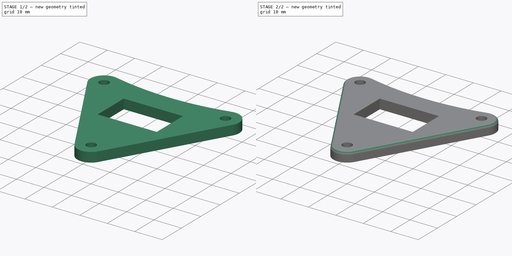
[diagram: build sequence overview — one tinted view per stage of 2, left to right]
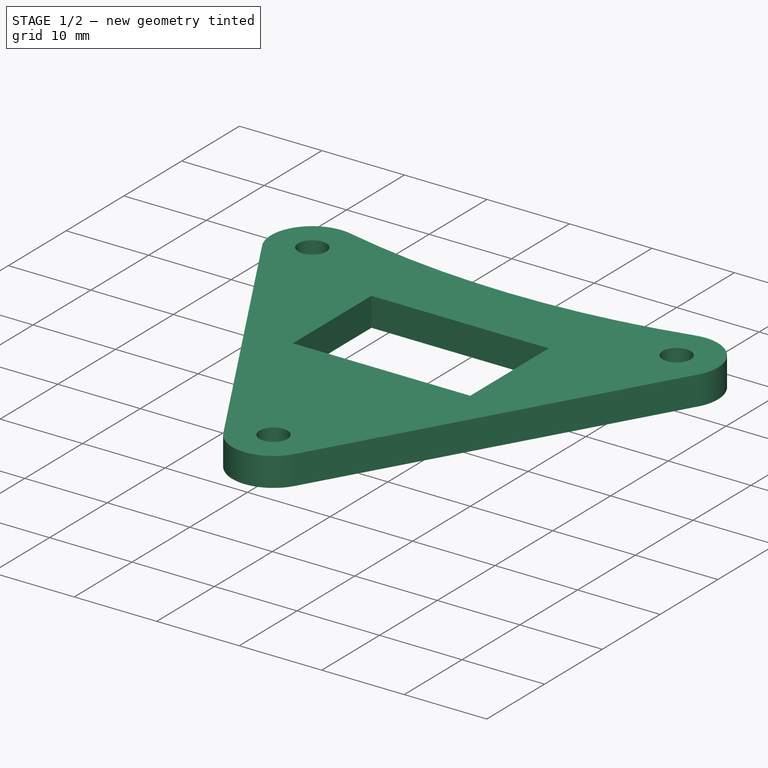
[diagram: stage 1 of 2 — iso view after this stage's code; geometry added in this stage tinted green]
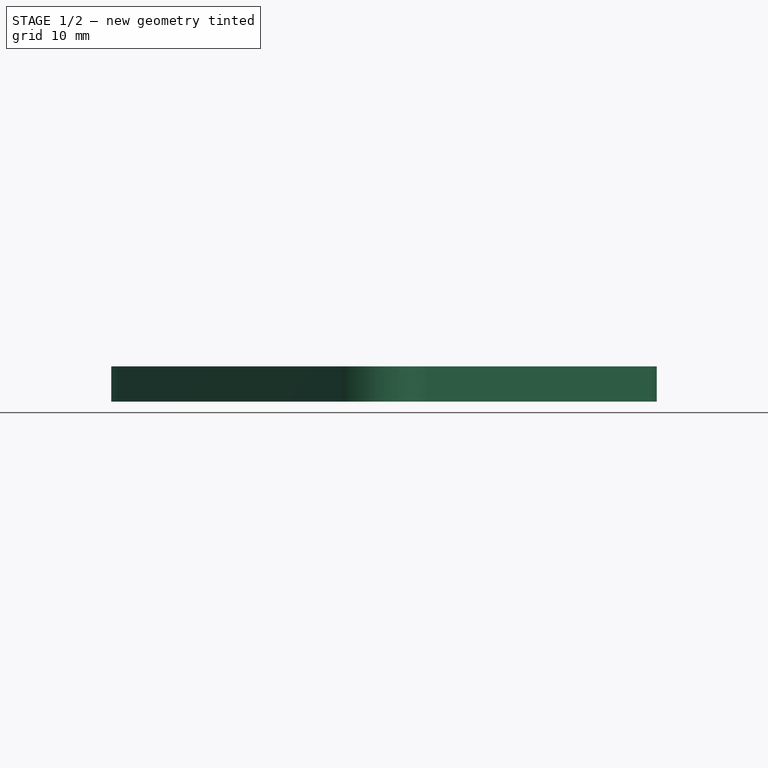
[diagram: stage 1 of 2 — front view after this stage's code; geometry added in this stage tinted green]
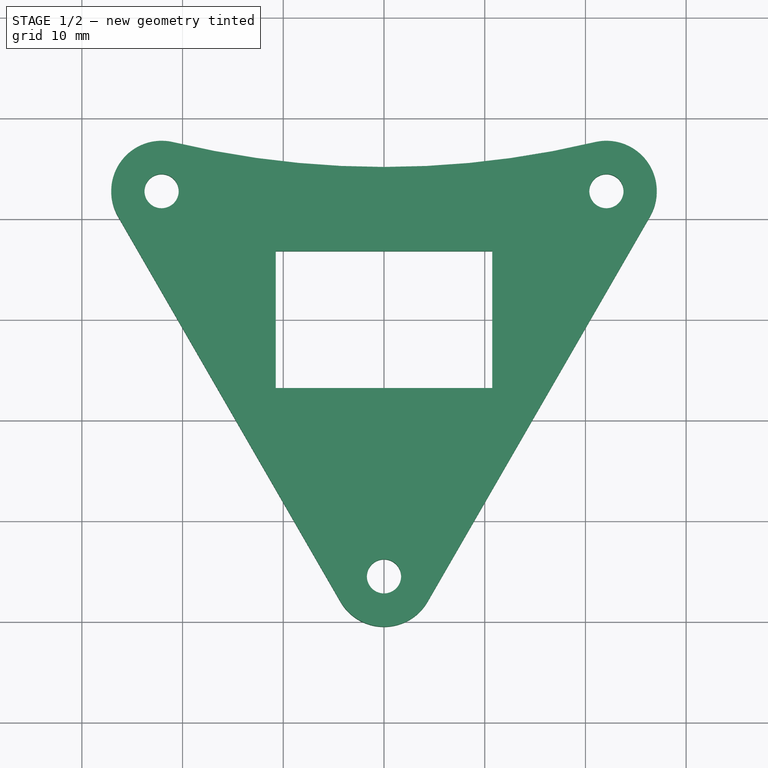
[diagram: stage 1 of 2 — top view after this stage's code; geometry added in this stage tinted green]
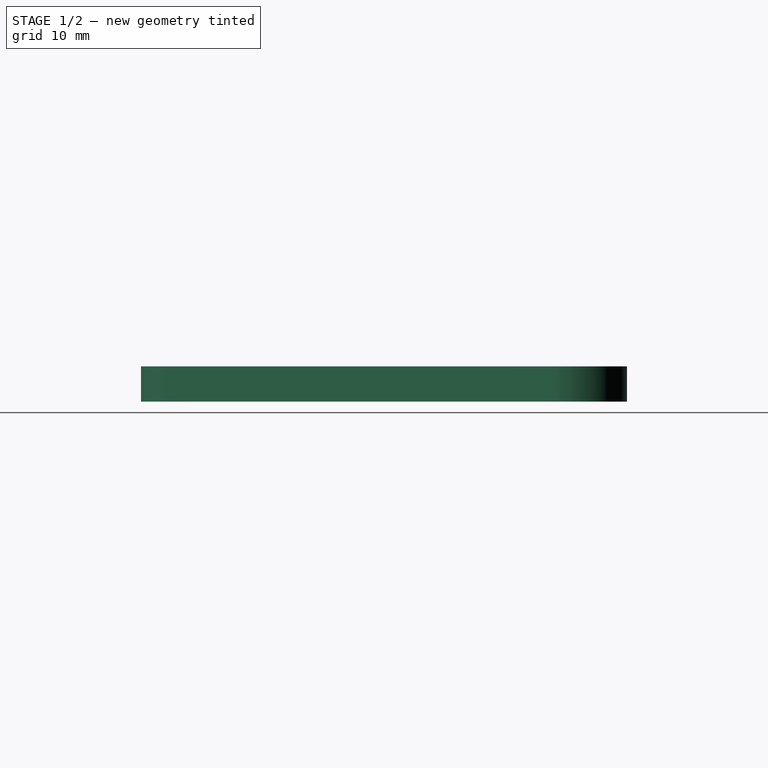
[diagram: stage 1 of 2 — right view after this stage's code; geometry added in this stage tinted green]
FCSTD DOCUMENT  (FreeCAD 0.18R4 (GitTag))
Label: _Y_Tensioner_Counter plate
License: CreativeCommons Attribution-ShareAlike
LicenseURL: http://creativecommons.org/licenses/by-sa/4.0/
objects: Sketcher::SketchObject×1, PartDesign::Pad×1, PartDesign::Fillet×1, PartDesign::Body×1
note: 5 computed .brp shape members not serialized (recipe doc carries the construction recipe); baked Part::Feature solids carry a one-line shape summary decoded from their .brp

FEATURE [Sketcher::SketchObject] Sketch
  MapMode = 5
  Support = -> [XY_Plane]
  sketch-geometry (18):
    g0: Circle [constr] CenterX=0 CenterY=0 CenterZ=0 NormalX=0 NormalY=0 NormalZ=1 AngleXU=0 Radius=25.5
    g1: LineSegment [constr] StartX=0 StartY=0 StartZ=0 EndX=-22.0836 EndY=12.75 EndZ=0
    g2: LineSegment [constr] StartX=0 StartY=0 StartZ=0 EndX=22.0836 EndY=12.75 EndZ=0
    g3: LineSegment [constr] StartX=0 StartY=0 StartZ=0 EndX=0 EndY=-25.5 EndZ=0
    g4: Circle CenterX=-22.0836 CenterY=12.75 CenterZ=0 NormalX=0 NormalY=0 NormalZ=1 AngleXU=0 Radius=1.7
    g5: Circle CenterX=22.0836 CenterY=12.75 CenterZ=0 NormalX=0 NormalY=0 NormalZ=1 AngleXU=0 Radius=1.7
    g6: Circle CenterX=0 CenterY=-25.5 CenterZ=0 NormalX=0 NormalY=0 NormalZ=1 AngleXU=0 Radius=1.7
    g7: LineSegment StartX=-10.75 StartY=6.8 StartZ=0 EndX=10.75 EndY=6.8 EndZ=0
    g8: LineSegment StartX=10.75 StartY=6.8 StartZ=0 EndX=10.75 EndY=-6.8 EndZ=0
    g9: LineSegment StartX=10.75 StartY=-6.8 StartZ=0 EndX=-10.75 EndY=-6.8 EndZ=0
    g10: LineSegment StartX=-10.75 StartY=-6.8 StartZ=0 EndX=-10.75 EndY=6.8 EndZ=0
    g11: ArcOfCircle CenterX=-22.0836 CenterY=12.75 CenterZ=0 NormalX=0 NormalY=0 NormalZ=1 AngleXU=0 Radius=5 StartAngle=1.33619 EndAngle=3.66519
    g12: ArcOfCircle CenterX=0 CenterY=-25.5 CenterZ=0 NormalX=0 NormalY=0 NormalZ=1 AngleXU=0 Radius=5 StartAngle=3.66519 EndAngle=5.75959
    g13: ArcOfCircle CenterX=22.0836 CenterY=12.75 CenterZ=0 NormalX=0 NormalY=0 NormalZ=1 AngleXU=0 Radius=5 StartAngle=5.75959 EndAngle=8.08859
    g14: ArcOfCircle CenterX=-8.6e-15 CenterY=105.148 CenterZ=0 NormalX=0 NormalY=0 NormalZ=1 AngleXU=0 Radius=90 StartAngle=4.47778 EndAngle=4.94699
    g15: LineSegment [constr] StartX=-22.0836 StartY=12.75 StartZ=0 EndX=-22.0836 EndY=17.75 EndZ=0
    g16: LineSegment StartX=-26.4138 StartY=10.25 StartZ=0 EndX=-4.33013 EndY=-28 EndZ=0
    g17: LineSegment StartX=4.33013 StartY=-28 StartZ=0 EndX=26.4138 EndY=10.25 EndZ=0
  constraints (47):
    c: Coincident(g0,g-1)
    c: Radius(g0) = 25.5
    c: Coincident(g1,g-1)
    c: PointOnObject(g1,g0)
    c: Coincident(g2,g-1)
    c: PointOnObject(g2,g0)
    c: Coincident(g3,g-1)
    c: PointOnObject(g3,g0)
    c: Vertical(g3)
    c: Angle(g3,g2) = 2.0944
    c: Angle(g1,g3) = 2.0944
    c: Coincident(g4,g1)
    c: Coincident(g5,g2)
    c: Coincident(g6,g3)
    c: Radius(g6) = 1.7
    c: Equal(g6,g5)
    c: Equal(g6,g4)
    c: Coincident(g7,g8)
    c: Coincident(g8,g9)
    c: Coincident(g9,g10)
    c: Coincident(g10,g7)
    c: Horizontal(g7)
    c: Vertical(g8)
    c: DistanceX(g7,g7) = 21.5
    c: DistanceY(g8,g8) = 13.6
    c: Symmetric(g7,g9,g-1)
    c: Symmetric(g9,g8,g-2)
    c: Coincident(g11,g1)
    c: Coincident(g12,g3)
    c: Coincident(g13,g2)
    c: Equal(g13,g11)
    c: Equal(g13,g12)
    c: Tangent(g14,g11) = 1.5708
    c: Tangent(g14,g13) = 1.5708
    c: Coincident(g15,g1)
    c: PointOnObject(g15,g11)
    c: Vertical(g15)
    c: Radius(g11) = 5
    c: Radius(g14) = 90
    c: Coincident(g16,g11)
    c: Coincident(g16,g12)
    c: Coincident(g17,g12)
    c: Coincident(g17,g13)
    c: Tangent(g11,g16)
    c: Tangent(g16,g12)
    c: Tangent(g12,g17)
    c: Tangent(g13,g17)
FEATURE [PartDesign::Pad] Pad
  Length = 3.5
  Length2 = 100
  Profile = -> Sketch
  Refine = true
  Type = 0
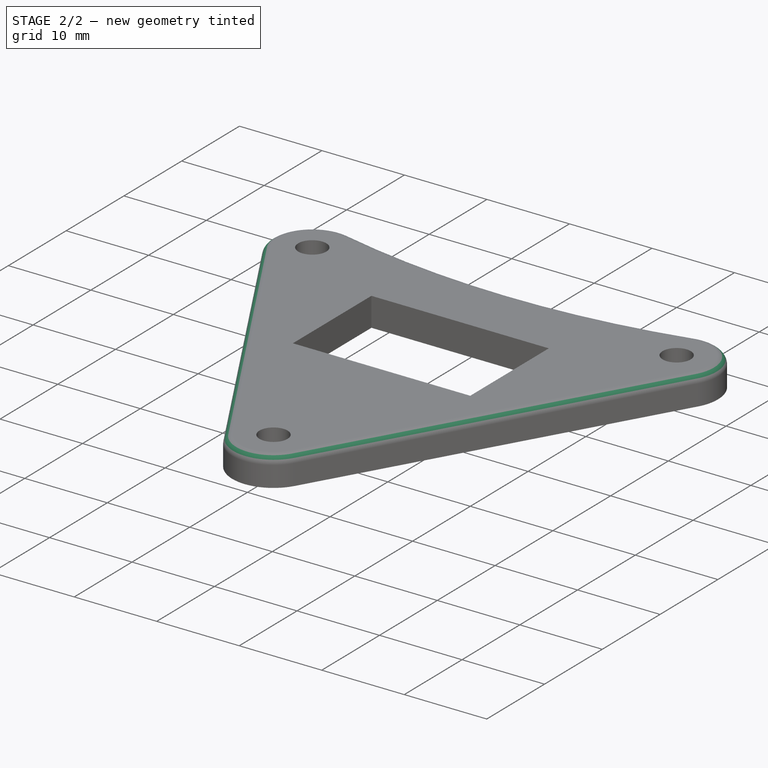
[diagram: stage 2 of 2 — iso view after this stage's code; geometry added in this stage tinted green]
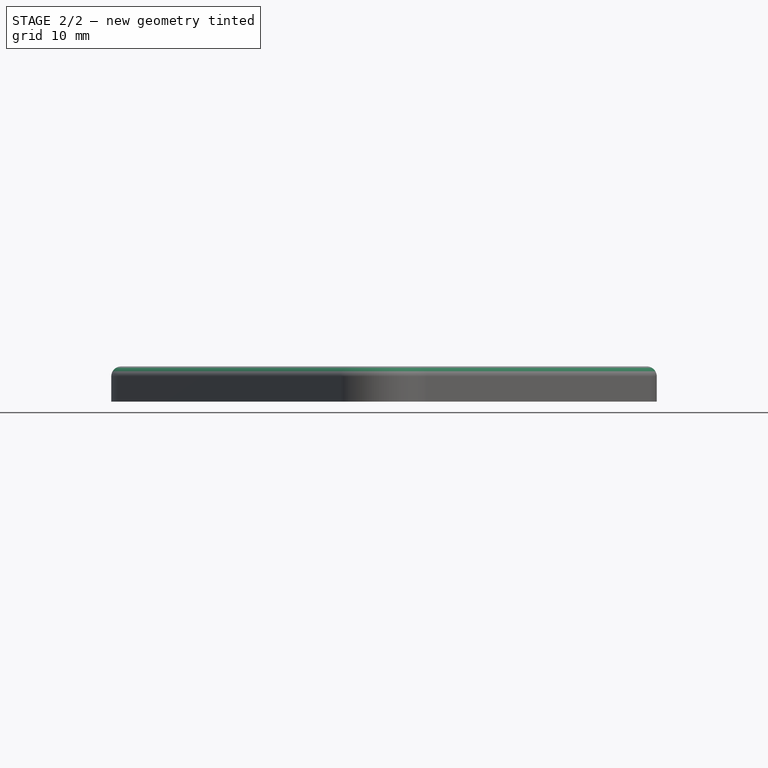
[diagram: stage 2 of 2 — front view after this stage's code; geometry added in this stage tinted green]
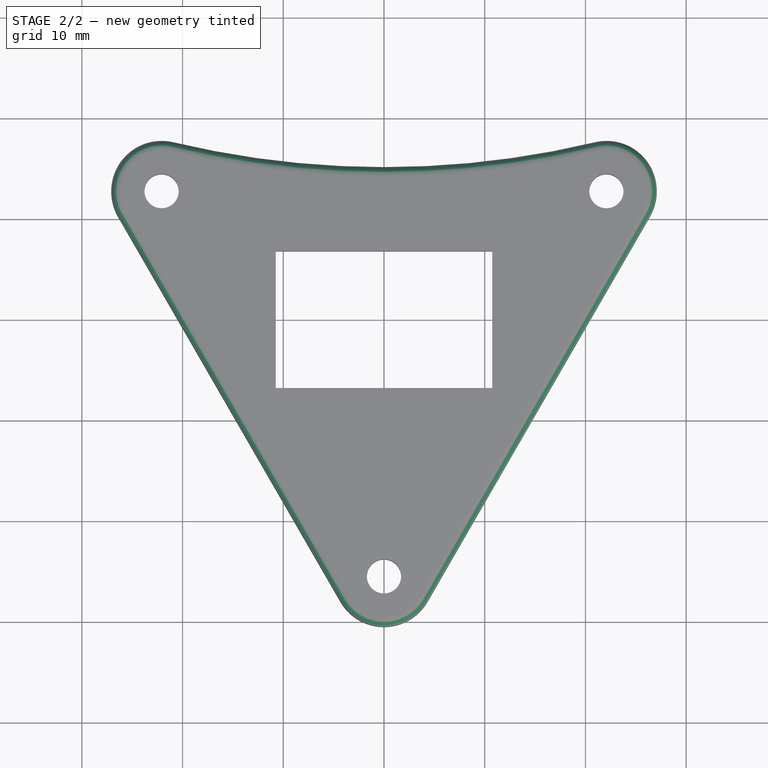
[diagram: stage 2 of 2 — top view after this stage's code; geometry added in this stage tinted green]
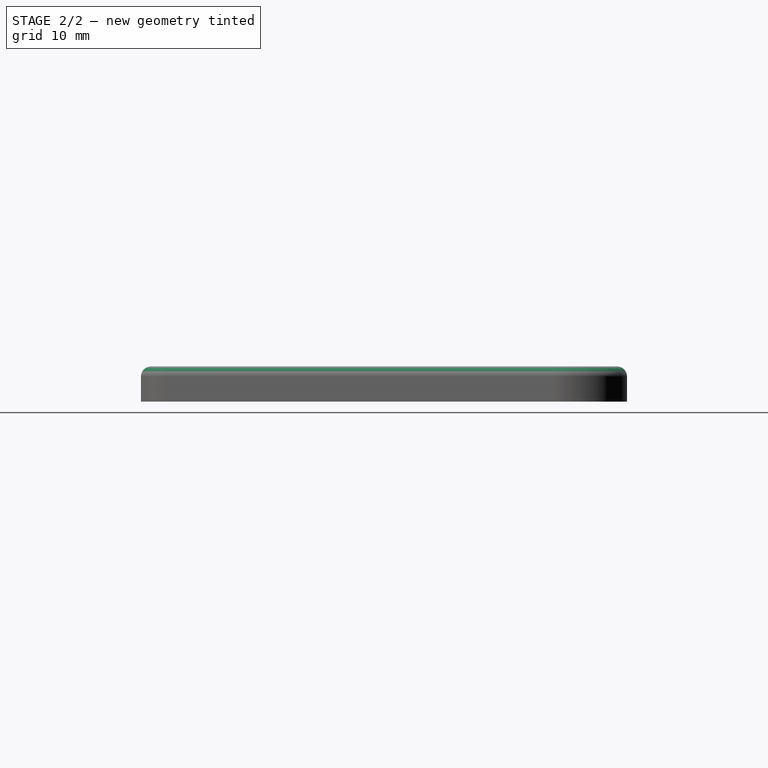
[diagram: stage 2 of 2 — right view after this stage's code; geometry added in this stage tinted green]
FEATURE [PartDesign::Fillet] Fillet
  Base = -> Pad [Edge7,Edge4,Edge18,Edge16,Edge13,Edge10]
  BaseFeature = -> Pad
  Radius = 1
FEATURE [PartDesign::Body] Body  label="counterplate"
  Group = -> [Sketch,Pad,Fillet]
  Origin = -> Origin
  Tip = -> Fillet
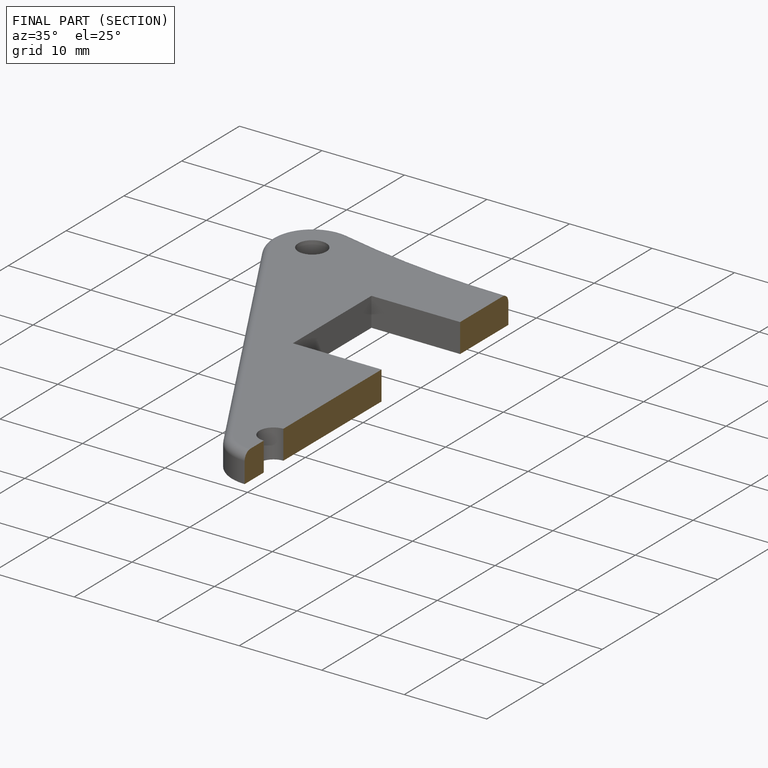
[diagram: finished part — half-section view (interior)]
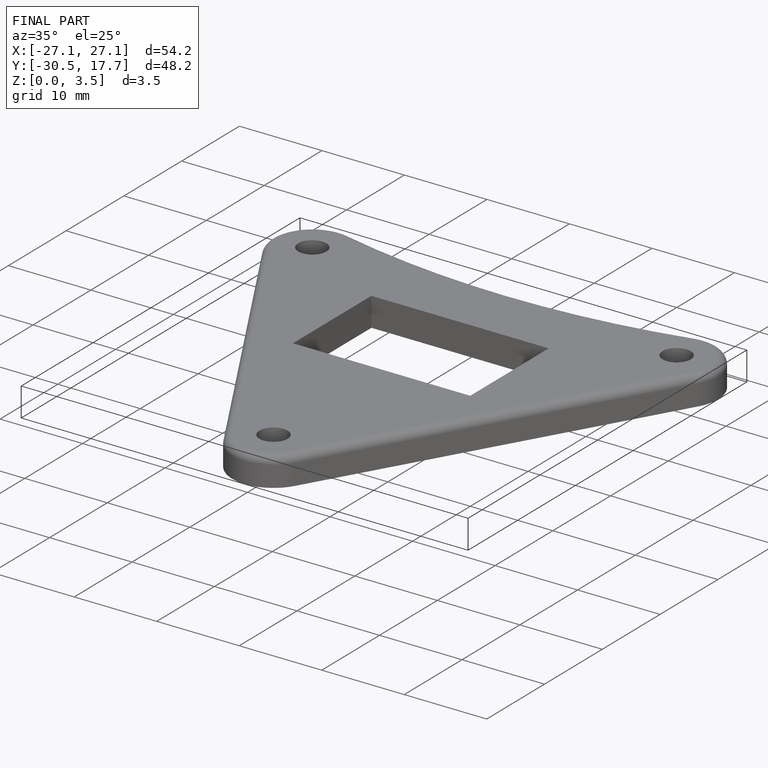
[diagram: finished part — iso view with bounding-box wireframe]
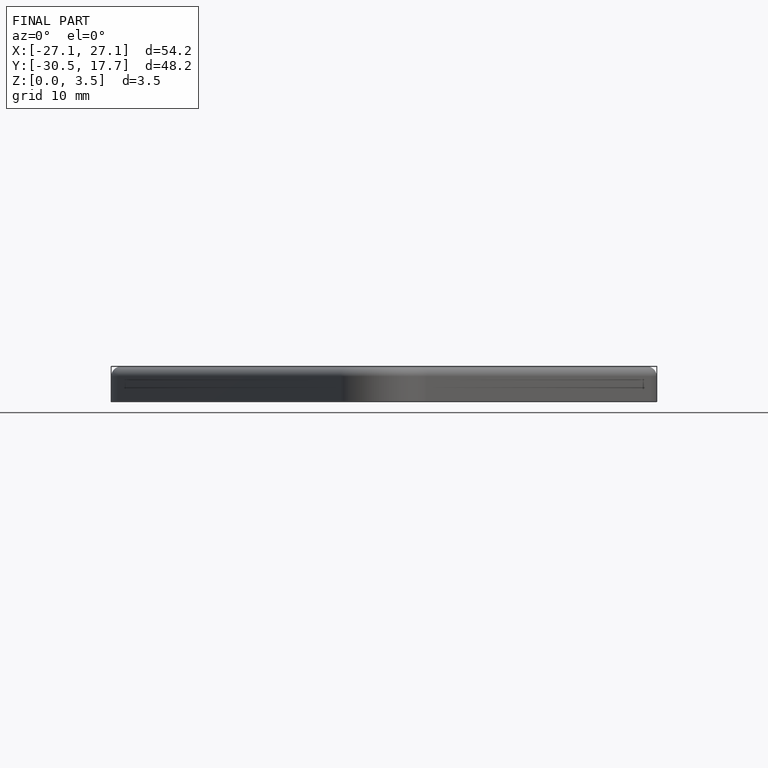
[diagram: finished part — front view with bounding-box wireframe]
